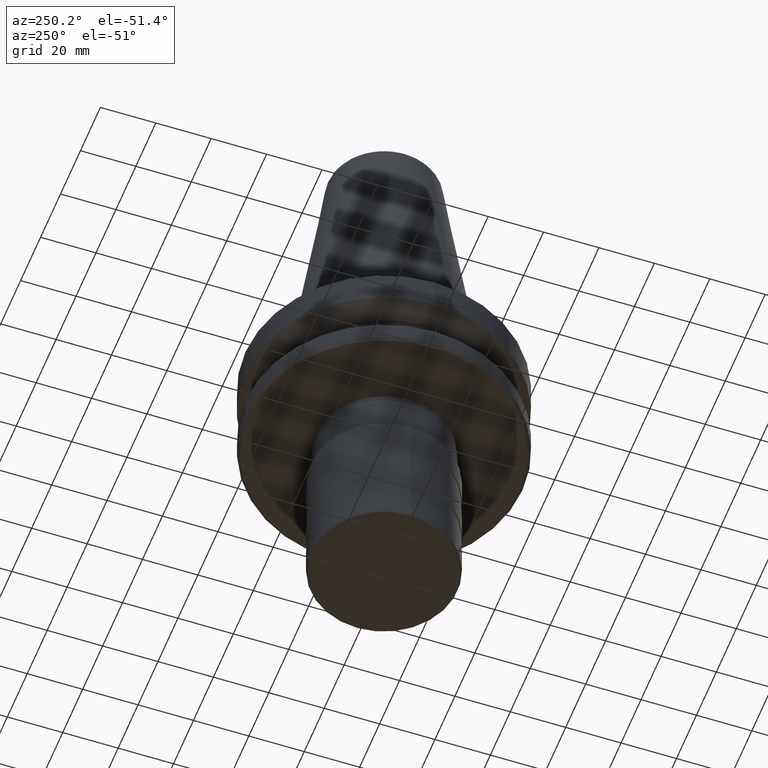
[diagram: clean part render]
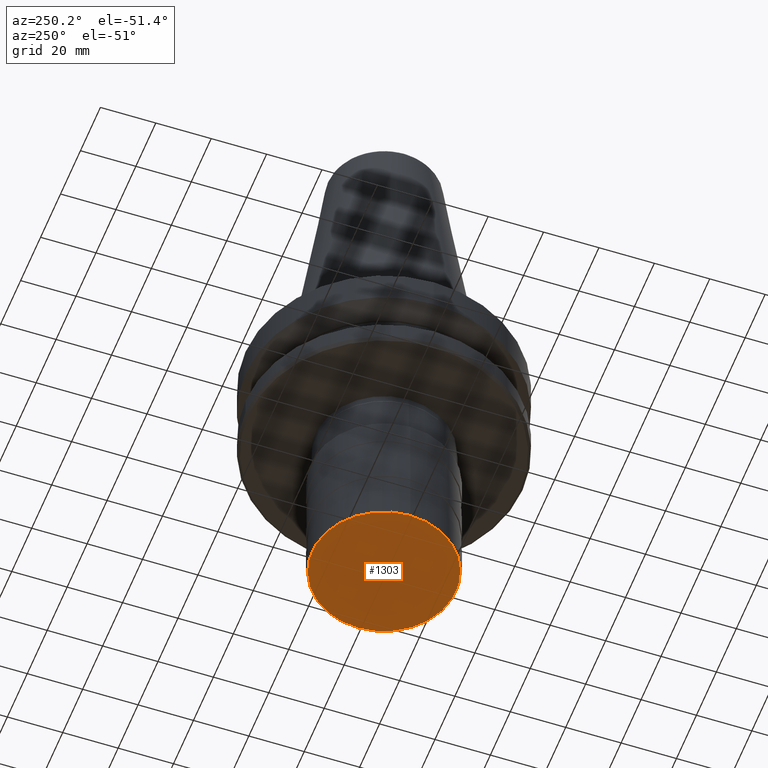
[diagram: same view with one face highlighted and labeled with its STEP entity id]
A machine part, auxiliary view. The second image highlights one B-rep face of the part: STEP entity #1303.
In plain terms, the highlighted planar face has unit normal (0, 0, 1).
Its self-contained STEP definition (entity closure, byte-faithful):
#14 = CARTESIAN_POINT ( 'NONE',  ( -26.00000000000000700, 3.214697847761798800E-015, -102.5000000000000300 ) ) ;
#157 = EDGE_CURVE ( 'NONE', #661, #1106, #327, .T. ) ;
#291 = CARTESIAN_POINT ( 'NONE',  ( 26.00000000000000400, 0.0000000000000000000, -102.5000000000000300 ) ) ;
#320 = PLANE ( 'NONE',  #1814 ) ;
#327 = CIRCLE ( 'NONE', #1799, 26.00000000000000400 ) ;
#354 = DIRECTION ( 'NONE',  ( 1.000000000000000000, 0.0000000000000000000, 0.0000000000000000000 ) ) ;
#356 = DIRECTION ( 'NONE',  ( -2.618450529776314700E-016, 0.0000000000000000000, 1.000000000000000000 ) ) ;
#361 = CARTESIAN_POINT ( 'NONE',  ( 1.309225264888085900E-016, 0.0000000000000000000, -102.5000000000000300 ) ) ;
#580 = EDGE_CURVE ( 'NONE', #1106, #661, #1097, .T. ) ;
#661 = VERTEX_POINT ( 'NONE', #291 ) ;
#672 = FACE_OUTER_BOUND ( 'NONE', #1000, .T. ) ;
#1000 = EDGE_LOOP ( 'NONE', ( #1648, #1566 ) ) ;
#1097 = CIRCLE ( 'NONE', #1821, 26.00000000000000400 ) ;
#1106 = VERTEX_POINT ( 'NONE', #14 ) ;
#1119 = DIRECTION ( 'NONE',  ( 1.000000000000000000, 0.0000000000000000000, 0.0000000000000000000 ) ) ;
#1154 = CARTESIAN_POINT ( 'NONE',  ( 1.309225264888085900E-016, 0.0000000000000000000, -102.5000000000000300 ) ) ;
#1303 = ADVANCED_FACE ( 'NONE', ( #672 ), #320, .F. ) ;
#1440 = DIRECTION ( 'NONE',  ( -2.618450529776314700E-016, 0.0000000000000000000, 1.000000000000000000 ) ) ;
#1566 = ORIENTED_EDGE ( 'NONE', *, *, #580, .F. ) ;
#1648 = ORIENTED_EDGE ( 'NONE', *, *, #157, .F. ) ;
#1799 = AXIS2_PLACEMENT_3D ( 'NONE', #1154, #1440, #1119 ) ;
#1814 = AXIS2_PLACEMENT_3D ( 'NONE', #2065, #2064, #2061 ) ;
#1821 = AXIS2_PLACEMENT_3D ( 'NONE', #361, #356, #354 ) ;
#2061 = DIRECTION ( 'NONE',  ( 1.000000000000000000, 0.0000000000000000000, -0.0000000000000000000 ) ) ;
#2064 = DIRECTION ( 'NONE',  ( 0.0000000000000000000, 0.0000000000000000000, 1.000000000000000000 ) ) ;
#2065 = CARTESIAN_POINT ( 'NONE',  ( -26.31200000000000100, -26.31200000000000100, -102.5000000000000300 ) ) ;